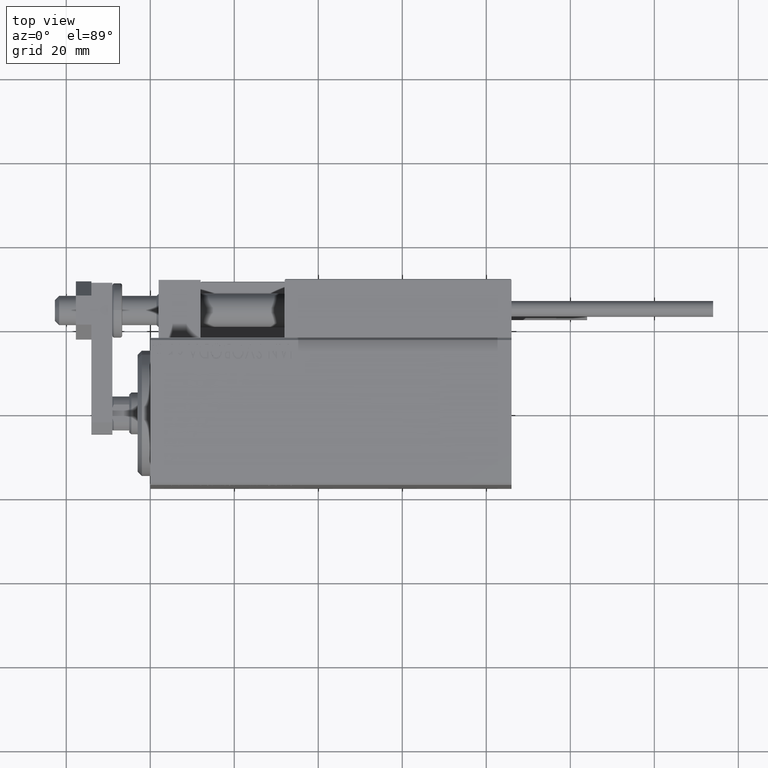
[diagram: clean part render]
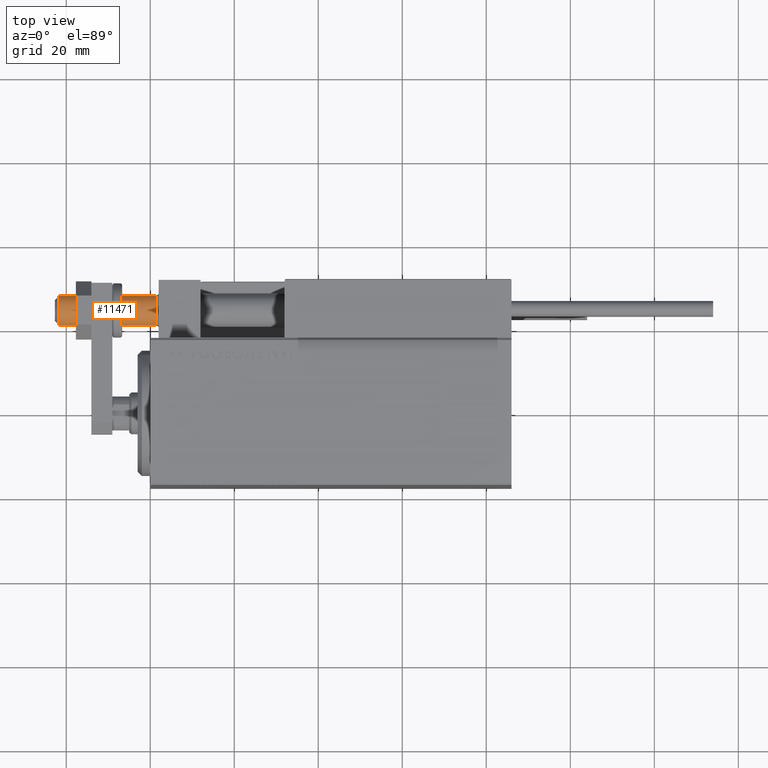
[diagram: same view with one face highlighted and labeled with its STEP entity id]
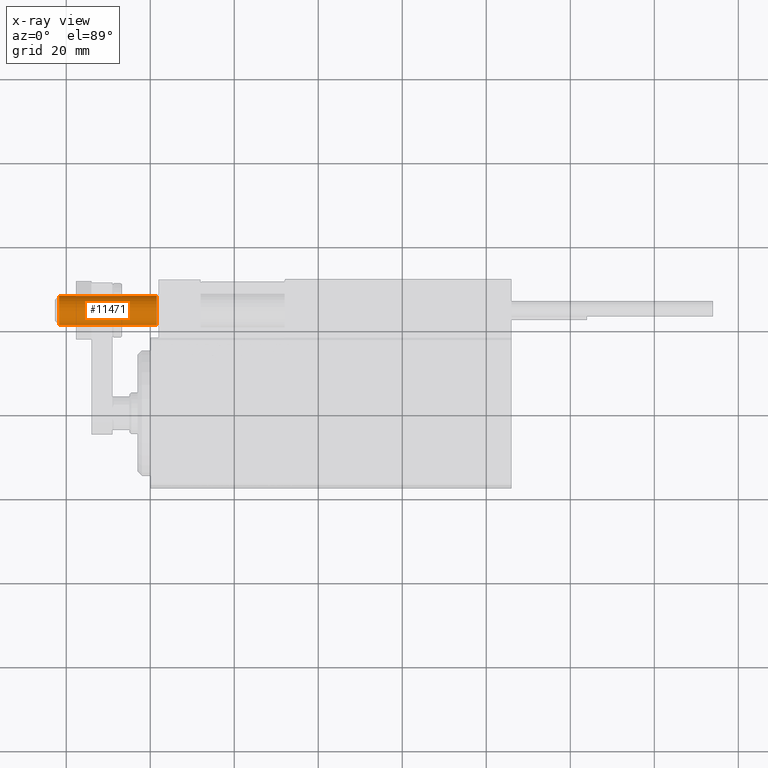
[diagram: x-ray of the same camera — body ghosted, the highlighted face saturated]
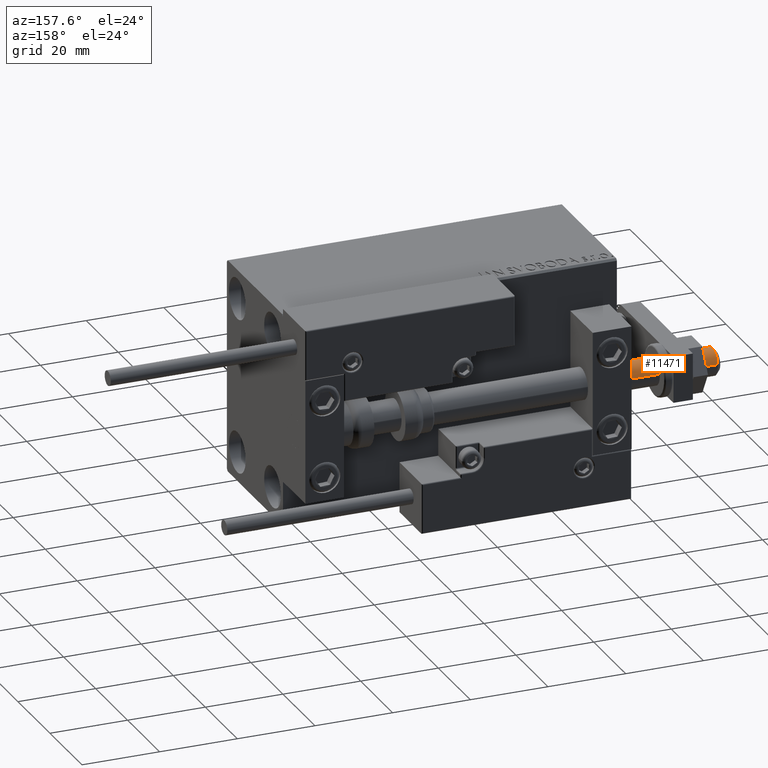
[diagram: same view with one face highlighted and labeled with its STEP entity id]
A machine part, top view. The second image highlights one B-rep face of the part: STEP entity #11471.
The next image is the same camera in x-ray: the body ghosted, the highlighted face saturated — about 0% of this face is hidden behind the body in this view.
A second angle (auxiliary view) of the same face is appended — the face is thin or edge-on in the first view.
In plain terms, the highlighted cylindrical surface (edge-blend (fillet) strip) has radius 3.5 mm, axis along (1, -0, -0).
Its self-contained STEP definition (entity closure, byte-faithful):
#1284 = VERTEX_POINT ( 'NONE', #43845 ) ;
#2997 = EDGE_CURVE ( 'NONE', #1284, #34049, #29415, .T. ) ;
#4312 = CARTESIAN_POINT ( 'NONE',  ( 3.500000000000000000, 0.000000000000000000, -21.69999999999998508 ) ) ;
#4664 = LINE ( 'NONE', #30822, #33279 ) ;
#6375 = DIRECTION ( 'NONE',  ( -0.000000000000000000, -0.000000000000000000, 1.000000000000000000 ) ) ;
#8271 = EDGE_CURVE ( 'NONE', #34049, #11117, #23250, .T. ) ;
#9042 = ORIENTED_EDGE ( 'NONE', *, *, #20584, .F. ) ;
#10069 = ORIENTED_EDGE ( 'NONE', *, *, #46017, .T. ) ;
#10173 = DIRECTION ( 'NONE',  ( 0.000000000000000000, 0.000000000000000000, 1.000000000000000000 ) ) ;
#10505 = DIRECTION ( 'NONE',  ( 0.000000000000000000, 0.000000000000000000, -1.000000000000000000 ) ) ;
#11117 = VERTEX_POINT ( 'NONE', #26725 ) ;
#11471 = ADVANCED_FACE ( 'NONE', ( #21858 ), #22616, .T. ) ;
#14165 = CARTESIAN_POINT ( 'NONE',  ( -3.500000000000000000, 4.286263797015736595E-16, -22.69999999999999929 ) ) ;
#14977 = DIRECTION ( 'NONE',  ( 1.000000000000000000, 0.000000000000000000, 0.000000000000000000 ) ) ;
#17111 = EDGE_LOOP ( 'NONE', ( #10069, #31878, #37221, #9042 ) ) ;
#20584 = EDGE_CURVE ( 'NONE', #42123, #11117, #4664, .T. ) ;
#21544 = DIRECTION ( 'NONE',  ( -0.000000000000000000, -0.000000000000000000, 1.000000000000000000 ) ) ;
#21602 = CARTESIAN_POINT ( 'NONE',  ( 0.000000000000000000, 0.000000000000000000, -21.69999999999998508 ) ) ;
#21858 = FACE_OUTER_BOUND ( 'NONE', #17111, .T. ) ;
#22616 = CYLINDRICAL_SURFACE ( 'NONE', #28087, 3.500000000000000000 ) ;
#23250 = CIRCLE ( 'NONE', #41050, 3.500000000000000000 ) ;
#25350 = AXIS2_PLACEMENT_3D ( 'NONE', #21602, #10173, #45195 ) ;
#26006 = DIRECTION ( 'NONE',  ( 1.000000000000000000, 0.000000000000000000, 0.000000000000000000 ) ) ;
#26725 = CARTESIAN_POINT ( 'NONE',  ( 3.500000000000000000, 0.000000000000000000, 1.500000000000025535 ) ) ;
#28087 = AXIS2_PLACEMENT_3D ( 'NONE', #41872, #6375, #14977 ) ;
#29415 = LINE ( 'NONE', #14165, #41703 ) ;
#30822 = CARTESIAN_POINT ( 'NONE',  ( 3.500000000000000000, 0.000000000000000000, -22.69999999999999929 ) ) ;
#31878 = ORIENTED_EDGE ( 'NONE', *, *, #2997, .T. ) ;
#33279 = VECTOR ( 'NONE', #42468, 1000.000000000000000 ) ;
#34049 = VERTEX_POINT ( 'NONE', #38653 ) ;
#37221 = ORIENTED_EDGE ( 'NONE', *, *, #8271, .T. ) ;
#38653 = CARTESIAN_POINT ( 'NONE',  ( -3.500000000000000000, 4.286263797015736595E-16, 1.500000000000025535 ) ) ;
#41050 = AXIS2_PLACEMENT_3D ( 'NONE', #44772, #10505, #26006 ) ;
#41703 = VECTOR ( 'NONE', #21544, 1000.000000000000000 ) ;
#41872 = CARTESIAN_POINT ( 'NONE',  ( 0.000000000000000000, 0.000000000000000000, -22.69999999999999929 ) ) ;
#42123 = VERTEX_POINT ( 'NONE', #4312 ) ;
#42468 = DIRECTION ( 'NONE',  ( -0.000000000000000000, -0.000000000000000000, 1.000000000000000000 ) ) ;
#43845 = CARTESIAN_POINT ( 'NONE',  ( -3.500000000000000000, 4.286263797015736595E-16, -21.69999999999998508 ) ) ;
#44772 = CARTESIAN_POINT ( 'NONE',  ( 0.000000000000000000, 0.000000000000000000, 1.500000000000025535 ) ) ;
#45195 = DIRECTION ( 'NONE',  ( -1.000000000000000000, 0.000000000000000000, 0.000000000000000000 ) ) ;
#46017 = EDGE_CURVE ( 'NONE', #42123, #1284, #47102, .T. ) ;
#47102 = CIRCLE ( 'NONE', #25350, 3.500000000000000000 ) ;